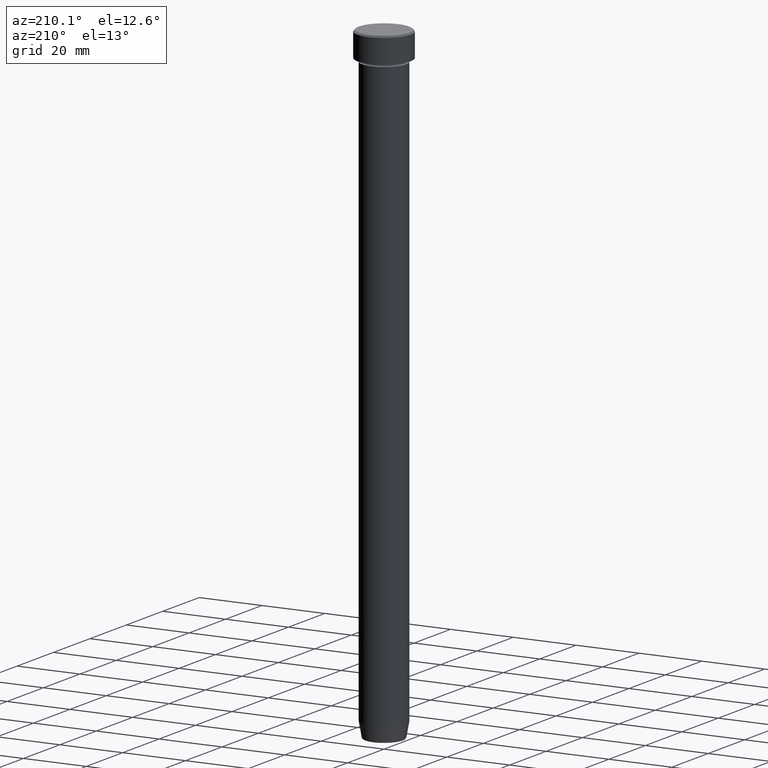
[diagram: clean part render]
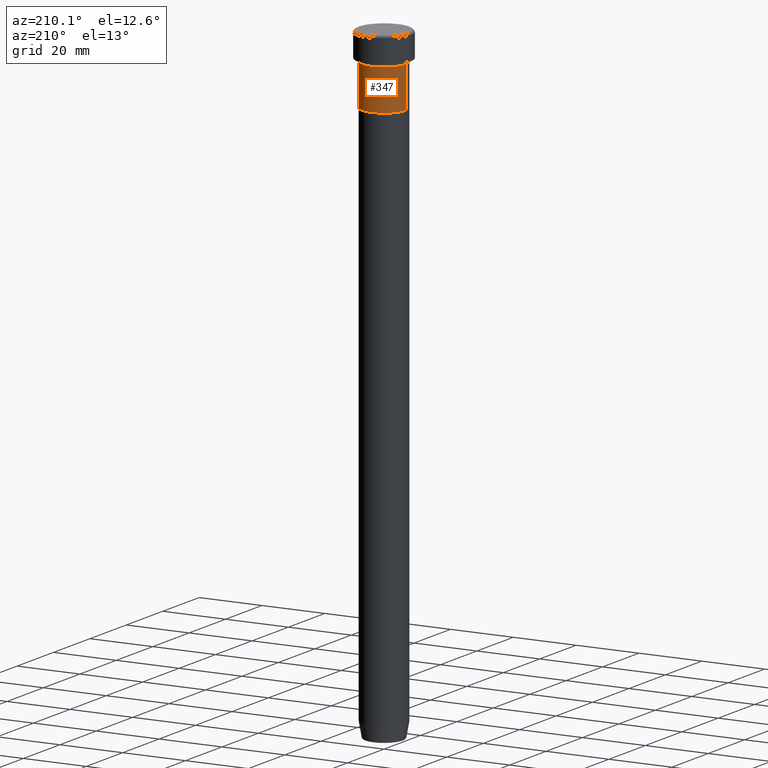
[diagram: same view with one face highlighted and labeled with its STEP entity id]
A machine part, auxiliary view. The second image highlights one B-rep face of the part: STEP entity #347.
In plain terms, the highlighted cylindrical surface (edge-blend (fillet) strip) has radius 7 mm, axis along (-0, -0, 1).
Its self-contained STEP definition (entity closure, byte-faithful):
#2 = DIRECTION ( 'NONE',  ( 1.000000000000000000, 0.000000000000000000, 0.000000000000000000 ) ) ;
#22 = CARTESIAN_POINT ( 'NONE',  ( 6.999999999999999112, 0.000000000000000000, -22.00000000000000000 ) ) ;
#32 = DIRECTION ( 'NONE',  ( -0.000000000000000000, -0.000000000000000000, 1.000000000000000000 ) ) ;
#43 = CARTESIAN_POINT ( 'NONE',  ( 0.000000000000000000, 0.000000000000000000, -9.000000000000001776 ) ) ;
#47 = CARTESIAN_POINT ( 'NONE',  ( 7.000000000000000000, 0.000000000000000000, -9.000000000000001776 ) ) ;
#61 = CARTESIAN_POINT ( 'NONE',  ( 6.999999999999999112, 0.000000000000000000, 0.000000000000000000 ) ) ;
#85 = EDGE_CURVE ( 'NONE', #490, #334, #378, .T. ) ;
#86 = VECTOR ( 'NONE', #163, 1000.000000000000000 ) ;
#106 = CARTESIAN_POINT ( 'NONE',  ( 0.000000000000000000, 0.000000000000000000, 0.000000000000000000 ) ) ;
#147 = DIRECTION ( 'NONE',  ( -0.000000000000000000, -0.000000000000000000, 1.000000000000000000 ) ) ;
#152 = FACE_OUTER_BOUND ( 'NONE', #352, .T. ) ;
#159 = DIRECTION ( 'NONE',  ( 1.000000000000000000, 0.000000000000000000, 0.000000000000000000 ) ) ;
#163 = DIRECTION ( 'NONE',  ( -0.000000000000000000, -0.000000000000000000, 1.000000000000000000 ) ) ;
#179 = LINE ( 'NONE', #405, #427 ) ;
#188 = DIRECTION ( 'NONE',  ( -0.000000000000000000, -0.000000000000000000, 1.000000000000000000 ) ) ;
#192 = EDGE_CURVE ( 'NONE', #238, #342, #193, .T. ) ;
#193 = CIRCLE ( 'NONE', #529, 7.000000000000000000 ) ;
#238 = VERTEX_POINT ( 'NONE', #47 ) ;
#272 = AXIS2_PLACEMENT_3D ( 'NONE', #106, #385, #159 ) ;
#281 = CARTESIAN_POINT ( 'NONE',  ( 0.000000000000000000, 0.000000000000000000, -22.00000000000000000 ) ) ;
#293 = ORIENTED_EDGE ( 'NONE', *, *, #306, .F. ) ;
#306 = EDGE_CURVE ( 'NONE', #490, #238, #478, .T. ) ;
#334 = VERTEX_POINT ( 'NONE', #564 ) ;
#342 = VERTEX_POINT ( 'NONE', #575 ) ;
#347 = ADVANCED_FACE ( 'NONE', ( #152 ), #518, .T. ) ;
#352 = EDGE_LOOP ( 'NONE', ( #574, #355, #432, #293 ) ) ;
#355 = ORIENTED_EDGE ( 'NONE', *, *, #498, .T. ) ;
#376 = DIRECTION ( 'NONE',  ( 1.000000000000000000, 0.000000000000000000, 0.000000000000000000 ) ) ;
#378 = CIRCLE ( 'NONE', #407, 6.999999999999999112 ) ;
#385 = DIRECTION ( 'NONE',  ( -0.000000000000000000, -0.000000000000000000, 1.000000000000000000 ) ) ;
#405 = CARTESIAN_POINT ( 'NONE',  ( -6.999999999999999112, 8.572527594031472204E-16, 0.000000000000000000 ) ) ;
#407 = AXIS2_PLACEMENT_3D ( 'NONE', #281, #147, #2 ) ;
#427 = VECTOR ( 'NONE', #32, 1000.000000000000000 ) ;
#432 = ORIENTED_EDGE ( 'NONE', *, *, #192, .F. ) ;
#478 = LINE ( 'NONE', #61, #86 ) ;
#490 = VERTEX_POINT ( 'NONE', #22 ) ;
#498 = EDGE_CURVE ( 'NONE', #334, #342, #179, .T. ) ;
#518 = CYLINDRICAL_SURFACE ( 'NONE', #272, 6.999999999999999112 ) ;
#529 = AXIS2_PLACEMENT_3D ( 'NONE', #43, #188, #376 ) ;
#564 = CARTESIAN_POINT ( 'NONE',  ( -6.999999999999999112, 8.572527594031472204E-16, -22.00000000000000000 ) ) ;
#574 = ORIENTED_EDGE ( 'NONE', *, *, #85, .T. ) ;
#575 = CARTESIAN_POINT ( 'NONE',  ( -7.000000000000000888, 8.572527594031474176E-16, -9.000000000000001776 ) ) ;